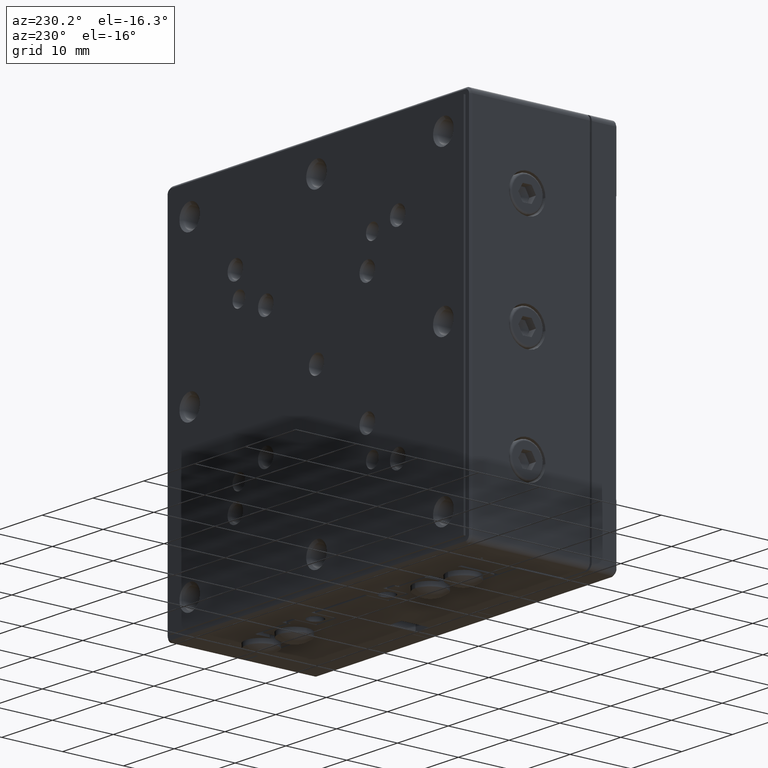
[diagram: clean part render]
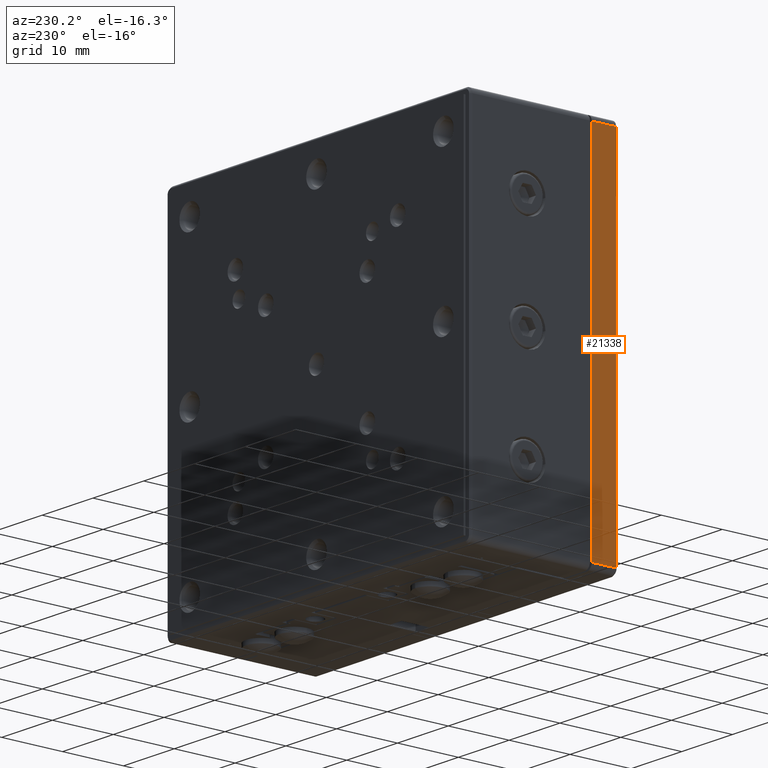
[diagram: same view with one face highlighted and labeled with its STEP entity id]
A machine part, auxiliary view. The second image highlights one B-rep face of the part: STEP entity #21338.
In plain terms, the highlighted planar face has unit normal (-1, 0, 0).
Its self-contained STEP definition (entity closure, byte-faithful):
#723 = LINE ( 'NONE', #17640, #17426 ) ;
#807 = LINE ( 'NONE', #10608, #21615 ) ;
#1304 = PLANE ( 'NONE',  #3024 ) ;
#1729 = LINE ( 'NONE', #22565, #9439 ) ;
#2157 = VERTEX_POINT ( 'NONE', #3377 ) ;
#2538 = CARTESIAN_POINT ( 'NONE',  ( -2.721781133807610331E-12, 4.000000000000000000, -58.99999999999930367 ) ) ;
#2569 = DIRECTION ( 'NONE',  ( 0.000000000000000000, -1.000000000000000000, 0.000000000000000000 ) ) ;
#3016 = LINE ( 'NONE', #6922, #9985 ) ;
#3024 = AXIS2_PLACEMENT_3D ( 'NONE', #3681, #24897, #23009 ) ;
#3377 = CARTESIAN_POINT ( 'NONE',  ( 0.000000000000000000, 0.000000000000000000, -50.00000000000000000 ) ) ;
#3681 = CARTESIAN_POINT ( 'NONE',  ( 0.000000000000000000, 0.000000000000000000, -60.00000000000000000 ) ) ;
#3817 = VECTOR ( 'NONE', #23623, 1000.000000000000000 ) ;
#4298 = EDGE_CURVE ( 'NONE', #16217, #20673, #3016, .T. ) ;
#4305 = ORIENTED_EDGE ( 'NONE', *, *, #14027, .T. ) ;
#5203 = ORIENTED_EDGE ( 'NONE', *, *, #8543, .T. ) ;
#5241 = DIRECTION ( 'NONE',  ( 0.000000000000000000, 1.000000000000000000, 0.000000000000000000 ) ) ;
#5265 = LINE ( 'NONE', #11193, #19154 ) ;
#6085 = VERTEX_POINT ( 'NONE', #20547 ) ;
#6275 = CARTESIAN_POINT ( 'NONE',  ( 0.000000000000000000, 0.000000000000000000, -10.00000000000000000 ) ) ;
#6433 = LINE ( 'NONE', #8587, #3817 ) ;
#6922 = CARTESIAN_POINT ( 'NONE',  ( -2.945560462208620466E-12, 4.000000000000000000, -58.99999999999930367 ) ) ;
#7410 = EDGE_CURVE ( 'NONE', #9306, #13997, #6433, .T. ) ;
#7948 = ORIENTED_EDGE ( 'NONE', *, *, #7410, .T. ) ;
#8543 = EDGE_CURVE ( 'NONE', #16217, #6085, #807, .T. ) ;
#8587 = CARTESIAN_POINT ( 'NONE',  ( 0.000000000000000000, 0.000000000000000000, -60.00000000000000000 ) ) ;
#9306 = VERTEX_POINT ( 'NONE', #6275 ) ;
#9439 = VECTOR ( 'NONE', #5241, 1000.000000000000000 ) ;
#9795 = EDGE_CURVE ( 'NONE', #2157, #9306, #723, .T. ) ;
#9985 = VECTOR ( 'NONE', #16535, 1000.000000000000000 ) ;
#10608 = CARTESIAN_POINT ( 'NONE',  ( 0.000000000000000000, 0.000000000000000000, -59.00000000000000000 ) ) ;
#11193 = CARTESIAN_POINT ( 'NONE',  ( 0.000000000000000000, 0.000000000000000000, -60.00000000000000000 ) ) ;
#12274 = EDGE_CURVE ( 'NONE', #6085, #2157, #5265, .T. ) ;
#13709 = DIRECTION ( 'NONE',  ( 0.000000000000000000, 0.000000000000000000, 1.000000000000000000 ) ) ;
#13997 = VERTEX_POINT ( 'NONE', #24824 ) ;
#14027 = EDGE_CURVE ( 'NONE', #13997, #20673, #1729, .T. ) ;
#14304 = ORIENTED_EDGE ( 'NONE', *, *, #9795, .T. ) ;
#16217 = VERTEX_POINT ( 'NONE', #2538 ) ;
#16365 = EDGE_LOOP ( 'NONE', ( #4305, #19270, #5203, #16505, #14304, #7948 ) ) ;
#16505 = ORIENTED_EDGE ( 'NONE', *, *, #12274, .T. ) ;
#16535 = DIRECTION ( 'NONE',  ( 2.548248968158955049E-14, 0.000000000000000000, 1.000000000000000000 ) ) ;
#16691 = FACE_OUTER_BOUND ( 'NONE', #16365, .T. ) ;
#16768 = DIRECTION ( 'NONE',  ( 0.000000000000000000, 0.000000000000000000, 1.000000000000000000 ) ) ;
#17426 = VECTOR ( 'NONE', #13709, 1000.000000000000000 ) ;
#17640 = CARTESIAN_POINT ( 'NONE',  ( 0.000000000000000000, 0.000000000000000000, -60.00000000000000000 ) ) ;
#19154 = VECTOR ( 'NONE', #16768, 1000.000000000000000 ) ;
#19270 = ORIENTED_EDGE ( 'NONE', *, *, #4298, .F. ) ;
#20547 = CARTESIAN_POINT ( 'NONE',  ( 0.000000000000000000, 1.680513367352529901E-15, -59.00000000000000000 ) ) ;
#20673 = VERTEX_POINT ( 'NONE', #23309 ) ;
#21338 = ADVANCED_FACE ( 'NONE', ( #16691 ), #1304, .T. ) ;
#21615 = VECTOR ( 'NONE', #2569, 1000.000000000000000 ) ;
#22565 = CARTESIAN_POINT ( 'NONE',  ( 0.000000000000000000, 11.59999999999999964, -1.000000000000000000 ) ) ;
#23009 = DIRECTION ( 'NONE',  ( 0.000000000000000000, 0.000000000000000000, 1.000000000000000000 ) ) ;
#23309 = CARTESIAN_POINT ( 'NONE',  ( 0.000000000000000000, 4.000000000000000000, -1.000000000000000000 ) ) ;
#23623 = DIRECTION ( 'NONE',  ( 0.000000000000000000, 0.000000000000000000, 1.000000000000000000 ) ) ;
#24824 = CARTESIAN_POINT ( 'NONE',  ( 0.000000000000000000, 0.000000000000000000, -1.000000000000000000 ) ) ;
#24897 = DIRECTION ( 'NONE',  ( -1.000000000000000000, 0.000000000000000000, 0.000000000000000000 ) ) ;